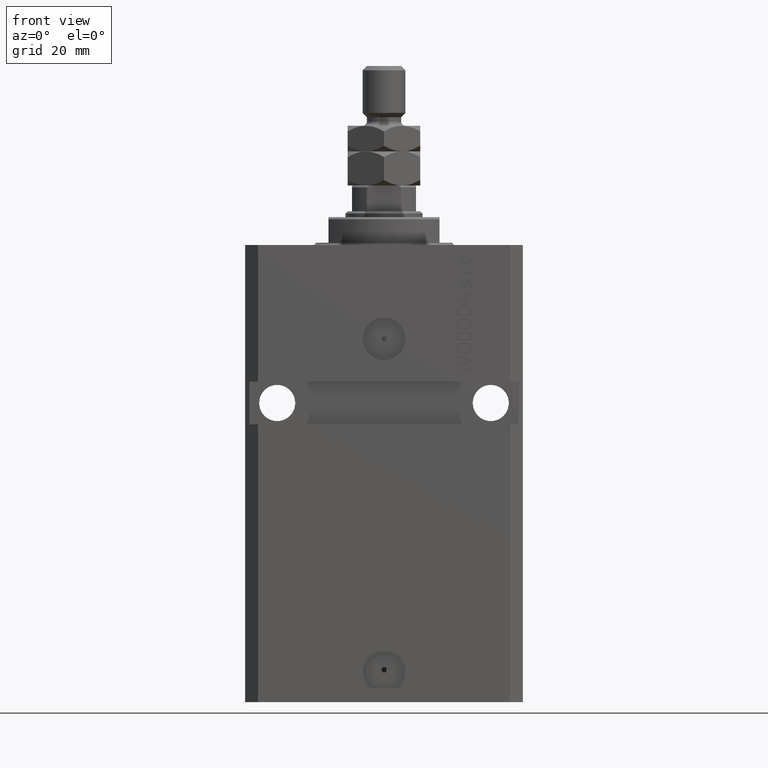
[diagram: clean part render]
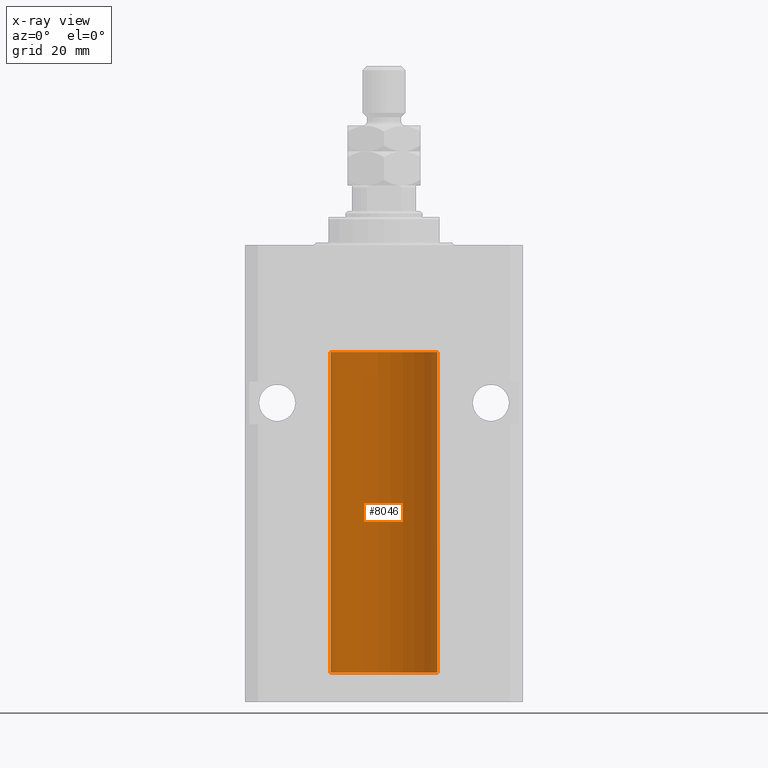
[diagram: x-ray — body ghosted, one internal face saturated and labeled with its STEP entity id]
A machine part, front view, then the same camera in x-ray: the body is ghosted and one INTERNAL B-rep face — a face not visible from any outside direction — is saturated and labeled: STEP entity #8046.
In plain terms, the highlighted cylindrical surface (partial cylindrical patch) has radius 12.5 mm, axis along (0, 0, 1).
Its self-contained STEP definition (entity closure, byte-faithful):
#319 = AXIS2_PLACEMENT_3D ( 'NONE', #24078, #4901, #34931 ) ;
#544 = CARTESIAN_POINT ( 'NONE',  ( 0.000000000000000000, 0.000000000000000000, -100.0999999999999943 ) ) ;
#760 = EDGE_CURVE ( 'NONE', #6680, #10804, #35165, .T. ) ;
#1839 = CARTESIAN_POINT ( 'NONE',  ( -12.50000000000017941, 3.883381774819353300E-13, -95.62500000000359535 ) ) ;
#2210 = LINE ( 'NONE', #17250, #23167 ) ;
#3485 = VERTEX_POINT ( 'NONE', #14128 ) ;
#3694 = CARTESIAN_POINT ( 'NONE',  ( -12.49422197749723829, 0.3843754434364257122, -94.50047099568094211 ) ) ;
#4108 = CARTESIAN_POINT ( 'NONE',  ( 12.50000000000000000, 0.000000000000000000, -25.10000000000000142 ) ) ;
#4353 = EDGE_CURVE ( 'NONE', #3485, #32226, #30209, .T. ) ;
#4901 = DIRECTION ( 'NONE',  ( 0.000000000000000000, 0.000000000000000000, 1.000000000000000000 ) ) ;
#5251 = EDGE_CURVE ( 'NONE', #10804, #28786, #41374, .T. ) ;
#5356 = ORIENTED_EDGE ( 'NONE', *, *, #760, .F. ) ;
#6680 = VERTEX_POINT ( 'NONE', #32862 ) ;
#6885 = DIRECTION ( 'NONE',  ( -0.000000000000000000, -0.000000000000000000, 1.000000000000000000 ) ) ;
#7148 = CARTESIAN_POINT ( 'NONE',  ( -12.49915784441387068, 0.1636601911727894876, -94.39126818989429069 ) ) ;
#8046 = ADVANCED_FACE ( 'NONE', ( #11632 ), #26175, .F. ) ;
#8265 = B_SPLINE_CURVE_WITH_KNOTS ( 'NONE', 3,
 ( #10589, #22416, #7148, #44583, #3694, #48538, #18479, #15024, #11326, #44832, #30043, #29808, #33490, #14775 ),
 .UNSPECIFIED., .F., .F.,
 ( 4, 2, 2, 2, 2, 2, 4 ),
 ( 3.486178718436696769E-18, 0.0002442924852390829216, 0.0004885849704781623738, 0.0009771699409563507684, 0.001221462426195465403, 0.001465754911434580254, 0.001954339881912780900 ),
 .UNSPECIFIED. ) ;
#9878 = CARTESIAN_POINT ( 'NONE',  ( -12.50000000000000000, 1.530808498934191521E-15, -25.10000000000000142 ) ) ;
#10589 = CARTESIAN_POINT ( 'NONE',  ( -12.50000000000000000, -1.522152011595579853E-14, -94.37500000000000000 ) ) ;
#10769 = EDGE_CURVE ( 'NONE', #21260, #32226, #16796, .T. ) ;
#10804 = VERTEX_POINT ( 'NONE', #38860 ) ;
#11326 = CARTESIAN_POINT ( 'NONE',  ( -12.48520330846397997, 0.6088355886774070580, -95.16325431852561678 ) ) ;
#11632 = FACE_OUTER_BOUND ( 'NONE', #40602, .T. ) ;
#11901 = ORIENTED_EDGE ( 'NONE', *, *, #39029, .T. ) ;
#13535 = DIRECTION ( 'NONE',  ( -0.000000000000000000, -0.000000000000000000, 1.000000000000000000 ) ) ;
#13927 = AXIS2_PLACEMENT_3D ( 'NONE', #21095, #41313, #45238 ) ;
#14128 = CARTESIAN_POINT ( 'NONE',  ( -12.50000000000000000, -1.522152011595579853E-14, -94.37500000000000000 ) ) ;
#14775 = CARTESIAN_POINT ( 'NONE',  ( -12.50000000000017941, 3.883381774819353300E-13, -95.62500000000359535 ) ) ;
#14837 = DIRECTION ( 'NONE',  ( -0.000000000000000000, -0.000000000000000000, 1.000000000000000000 ) ) ;
#15024 = CARTESIAN_POINT ( 'NONE',  ( -12.48436376893640620, 0.6250290278979871994, -95.08132082824478459 ) ) ;
#16217 = EDGE_CURVE ( 'NONE', #6680, #21260, #2210, .T. ) ;
#16796 = CIRCLE ( 'NONE', #319, 12.50000000000000000 ) ;
#17250 = CARTESIAN_POINT ( 'NONE',  ( 12.50000000000000000, 0.000000000000000000, -100.0999999999999943 ) ) ;
#18479 = CARTESIAN_POINT ( 'NONE',  ( -12.48436813453758631, 0.6249418250771134886, -94.83668996798924411 ) ) ;
#21095 = CARTESIAN_POINT ( 'NONE',  ( 0.000000000000000000, 0.000000000000000000, -100.0999999999999943 ) ) ;
#21260 = VERTEX_POINT ( 'NONE', #4108 ) ;
#22416 = CARTESIAN_POINT ( 'NONE',  ( -12.50000000000000000, 0.08260426088727994276, -94.37499999999998579 ) ) ;
#23167 = VECTOR ( 'NONE', #13535, 1000.000000000000000 ) ;
#23680 = VECTOR ( 'NONE', #34389, 1000.000000000000000 ) ;
#24078 = CARTESIAN_POINT ( 'NONE',  ( 0.000000000000000000, 0.000000000000000000, -25.10000000000000142 ) ) ;
#25926 = DIRECTION ( 'NONE',  ( 1.000000000000000000, 0.000000000000000000, 0.000000000000000000 ) ) ;
#26175 = CYLINDRICAL_SURFACE ( 'NONE', #28501, 12.50000000000000000 ) ;
#28501 = AXIS2_PLACEMENT_3D ( 'NONE', #544, #14837, #25926 ) ;
#28786 = VERTEX_POINT ( 'NONE', #1839 ) ;
#29808 = CARTESIAN_POINT ( 'NONE',  ( -12.49631005746706514, 0.3253680783018457756, -95.55856740465388555 ) ) ;
#30043 = CARTESIAN_POINT ( 'NONE',  ( -12.49011732893843529, 0.5003763274120199833, -95.38348111289285214 ) ) ;
#30209 = LINE ( 'NONE', #45236, #23680 ) ;
#32226 = VERTEX_POINT ( 'NONE', #9878 ) ;
#32862 = CARTESIAN_POINT ( 'NONE',  ( 12.50000000000000000, 0.000000000000000000, -100.0999999999999943 ) ) ;
#33088 = ORIENTED_EDGE ( 'NONE', *, *, #10769, .T. ) ;
#33490 = CARTESIAN_POINT ( 'NONE',  ( -12.49999999999999112, 0.1631761135151224562, -95.62499999999980105 ) ) ;
#34389 = DIRECTION ( 'NONE',  ( -0.000000000000000000, -0.000000000000000000, 1.000000000000000000 ) ) ;
#34931 = DIRECTION ( 'NONE',  ( 1.000000000000000000, 0.000000000000000000, 0.000000000000000000 ) ) ;
#35165 = CIRCLE ( 'NONE', #13927, 12.50000000000000000 ) ;
#35441 = ORIENTED_EDGE ( 'NONE', *, *, #4353, .F. ) ;
#38860 = CARTESIAN_POINT ( 'NONE',  ( -12.50000000000000000, 1.530808498934191521E-15, -100.0999999999999943 ) ) ;
#39029 = EDGE_CURVE ( 'NONE', #3485, #28786, #8265, .T. ) ;
#40602 = EDGE_LOOP ( 'NONE', ( #48554, #5356, #47998, #33088, #35441, #11901 ) ) ;
#41041 = VECTOR ( 'NONE', #6885, 1000.000000000000000 ) ;
#41313 = DIRECTION ( 'NONE',  ( 0.000000000000000000, 0.000000000000000000, 1.000000000000000000 ) ) ;
#41374 = LINE ( 'NONE', #44313, #41041 ) ;
#44313 = CARTESIAN_POINT ( 'NONE',  ( -12.50000000000000000, 1.530808498934191521E-15, -100.0999999999999943 ) ) ;
#44583 = CARTESIAN_POINT ( 'NONE',  ( -12.49625855304194033, 0.3150454781037993479, -94.45402800297488000 ) ) ;
#44832 = CARTESIAN_POINT ( 'NONE',  ( -12.48809959379011403, 0.5462151254764922026, -95.31461370481613926 ) ) ;
#45236 = CARTESIAN_POINT ( 'NONE',  ( -12.50000000000000000, 1.530808498934191521E-15, -100.0999999999999943 ) ) ;
#45238 = DIRECTION ( 'NONE',  ( 1.000000000000000000, 0.000000000000000000, 0.000000000000000000 ) ) ;
#47998 = ORIENTED_EDGE ( 'NONE', *, *, #16217, .T. ) ;
#48538 = CARTESIAN_POINT ( 'NONE',  ( -12.48810268015257741, 0.5573155909661239304, -94.67347410093871929 ) ) ;
#48554 = ORIENTED_EDGE ( 'NONE', *, *, #5251, .F. ) ;